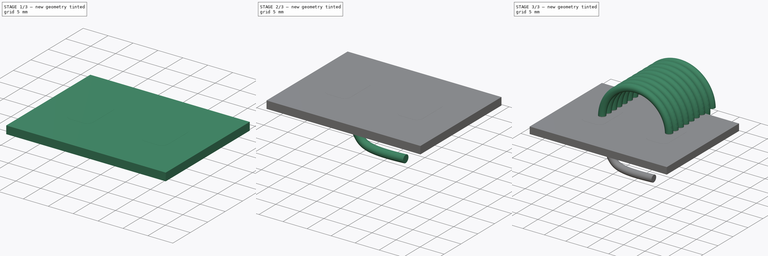
[diagram: build sequence overview — one tinted view per stage of 3, left to right]
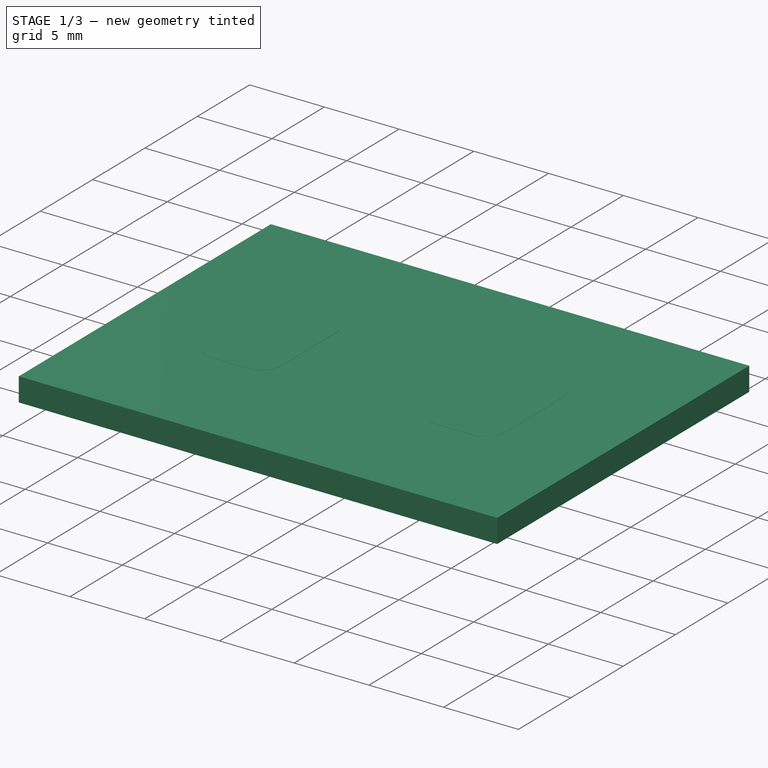
[diagram: stage 1 of 3 — iso view after this stage's code; geometry added in this stage tinted green]
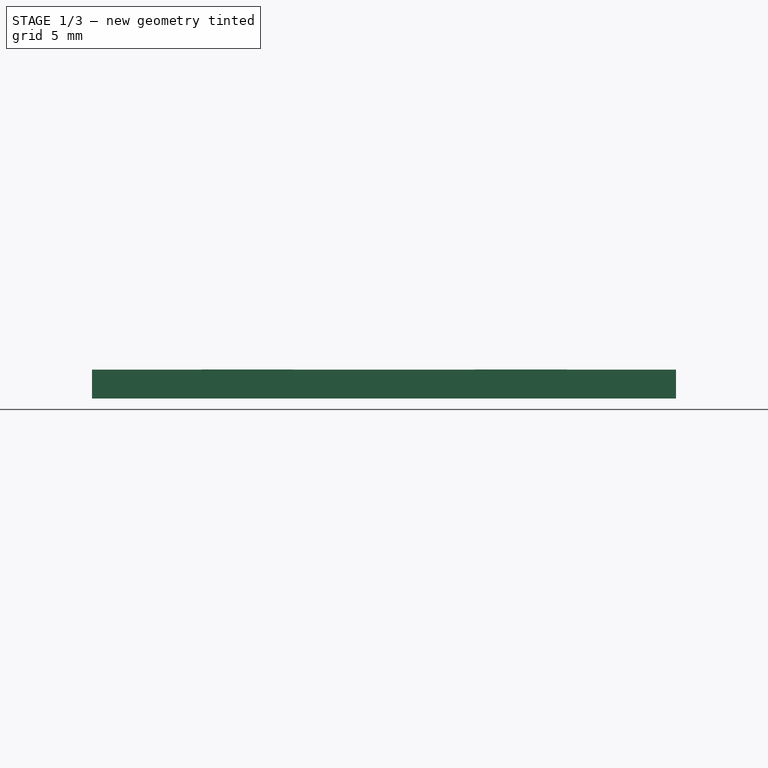
[diagram: stage 1 of 3 — front view after this stage's code; geometry added in this stage tinted green]
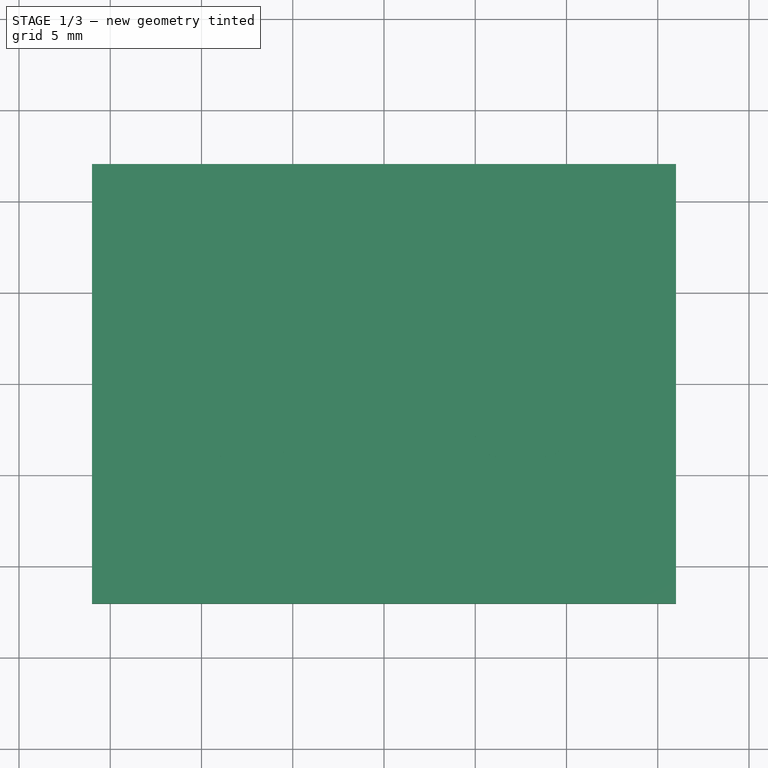
[diagram: stage 1 of 3 — top view after this stage's code; geometry added in this stage tinted green]
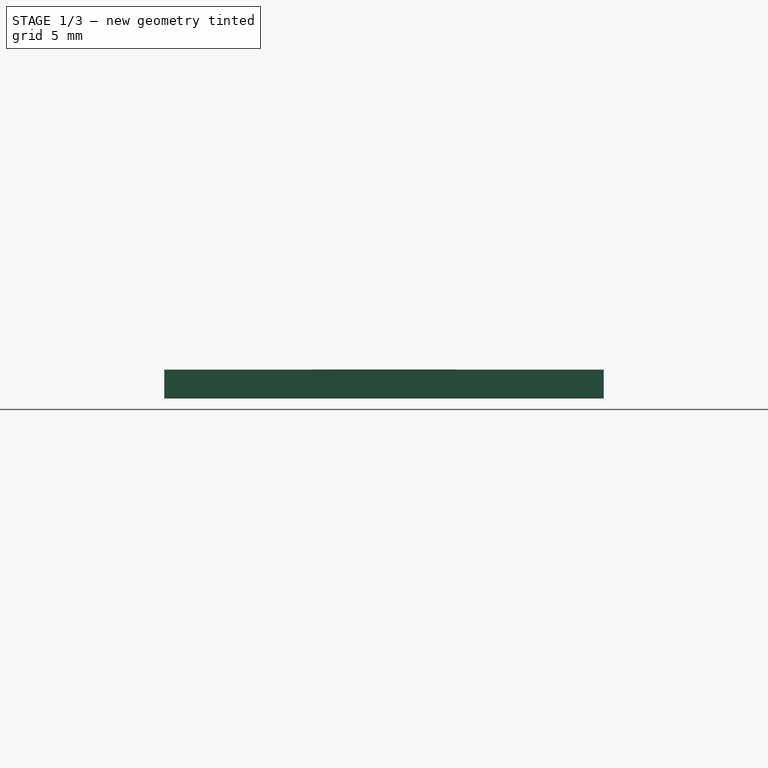
[diagram: stage 1 of 3 — right view after this stage's code; geometry added in this stage tinted green]
FCSTD DOCUMENT  (FreeCAD 0.19R24415 (Git))
Label: air core
License: All rights reserved
LicenseURL: http://en.wikipedia.org/wiki/All_rights_reserved
objects: Part::FeaturePython×3, Sketcher::SketchObject×2, PartDesign::Body×2, PartDesign::AdditiveHelix×1, Part::Sweep×1, PartDesign::FeatureBase×1, App::DocumentObjectGroup×1, Part::Feature×1
note: 12 computed .brp shape members not serialized (recipe doc carries the construction recipe); baked Part::Feature solids carry a one-line shape summary decoded from their .brp

FEATURE [PartDesign::Body] Body001
  Group = -> [Clone]
  Origin = -> Origin001
  Placement = pos=(-6e-16,15,0) rot=(0,0,1;3.14159rad)
  Tip = -> Clone
FEATURE [Part::FeaturePython] FCrtYd_lines  label="FCrtYd"  # a2plus imported part (geometry in sourceFile) (typed FeaturePython)
  fixedPosition = true
FEATURE [Part::FeaturePython] TopPads  # a2plus imported part (geometry in sourceFile) (typed FeaturePython)
  fixedPosition = true
FEATURE [Part::FeaturePython] newPCB  label="Pcb"  # a2plus imported part (geometry in sourceFile) (typed FeaturePython)
  fixedPosition = true
FEATURE [App::DocumentObjectGroup] inductor_air_15x15_fp
  Group = -> [FCrtYd_lines,TopPads,newPCB]
FEATURE [Part::Feature] Shape001  label="inductor_air_15x15"
  shape: bbox 18.04 x 19.73 x 22.47 mm, 13 faces (baked)
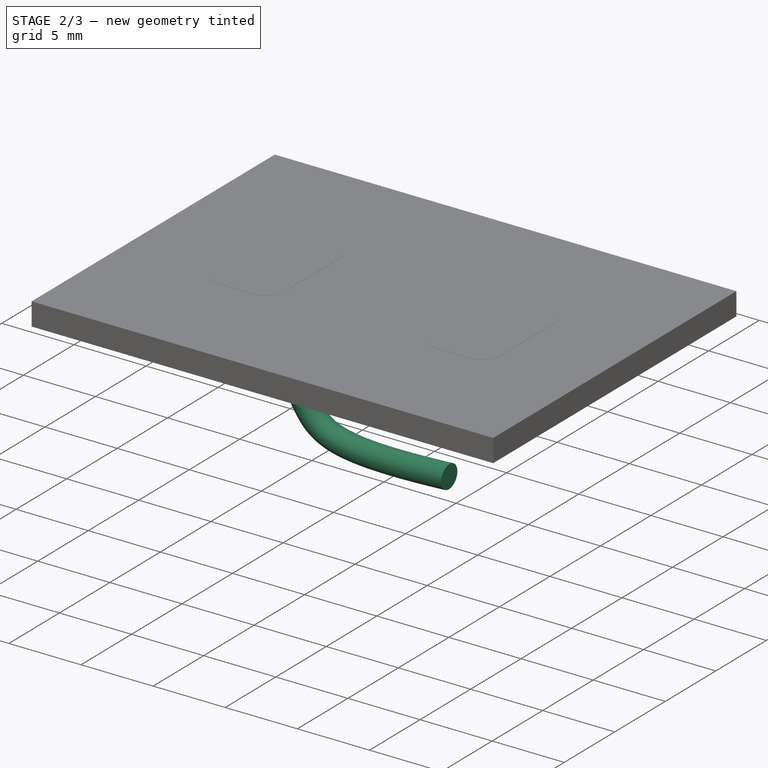
[diagram: stage 2 of 3 — iso view after this stage's code; geometry added in this stage tinted green]
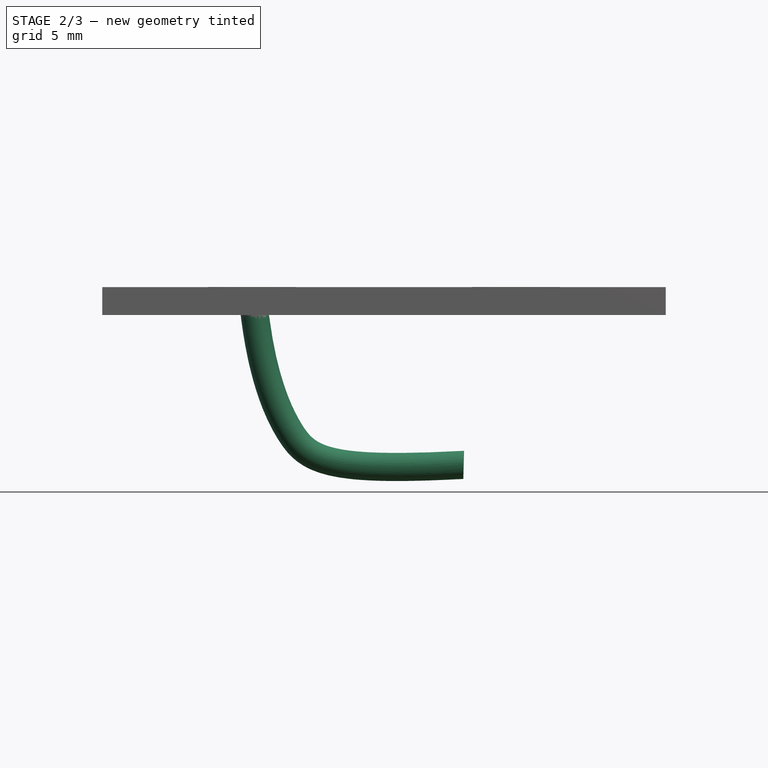
[diagram: stage 2 of 3 — front view after this stage's code; geometry added in this stage tinted green]
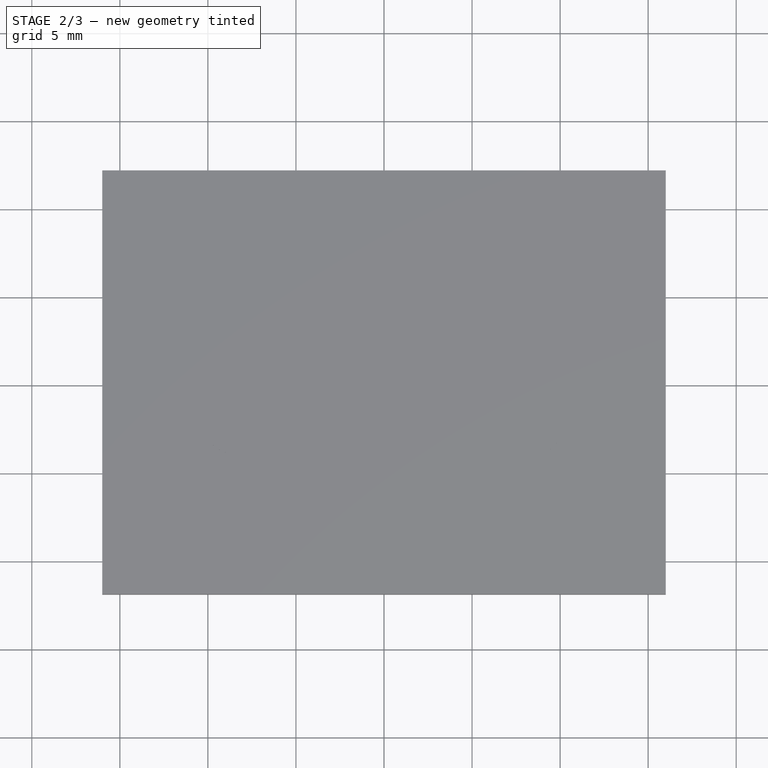
[diagram: stage 2 of 3 — top view after this stage's code; geometry added in this stage tinted green]
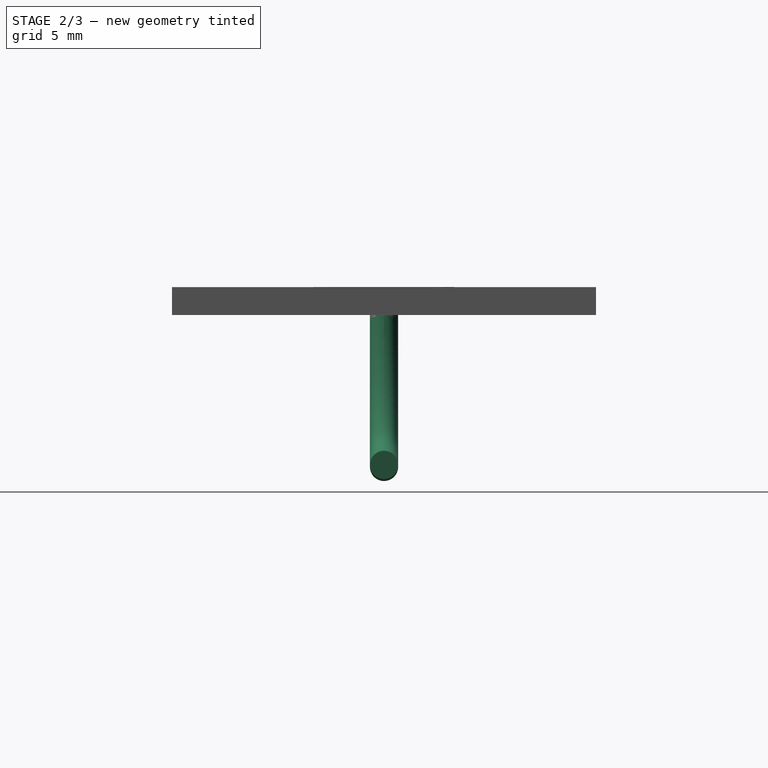
[diagram: stage 2 of 3 — right view after this stage's code; geometry added in this stage tinted green]
FEATURE [PartDesign::Body] Body
  Group = -> [Sketch001,Sketch,AdditiveHelix]
  Origin = -> Origin
  Tip = -> AdditiveHelix
FEATURE [Part::Sweep] Sweep
  Frenet = false
  Sections = -> [Sketch]
  Solid = true
  Spine = -> Sketch001 [Edge1]
  Transition = 1
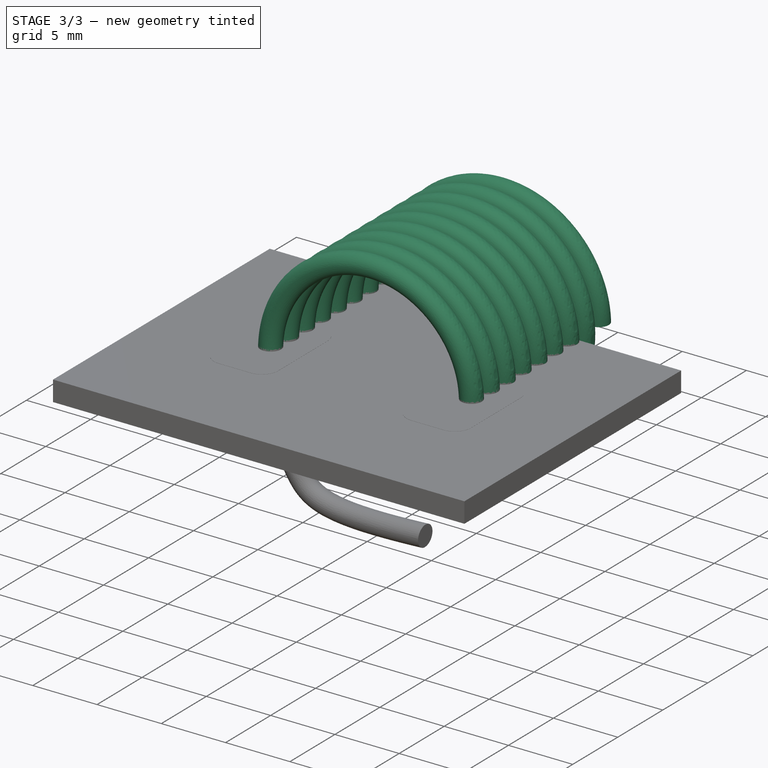
[diagram: stage 3 of 3 — iso view after this stage's code; geometry added in this stage tinted green]
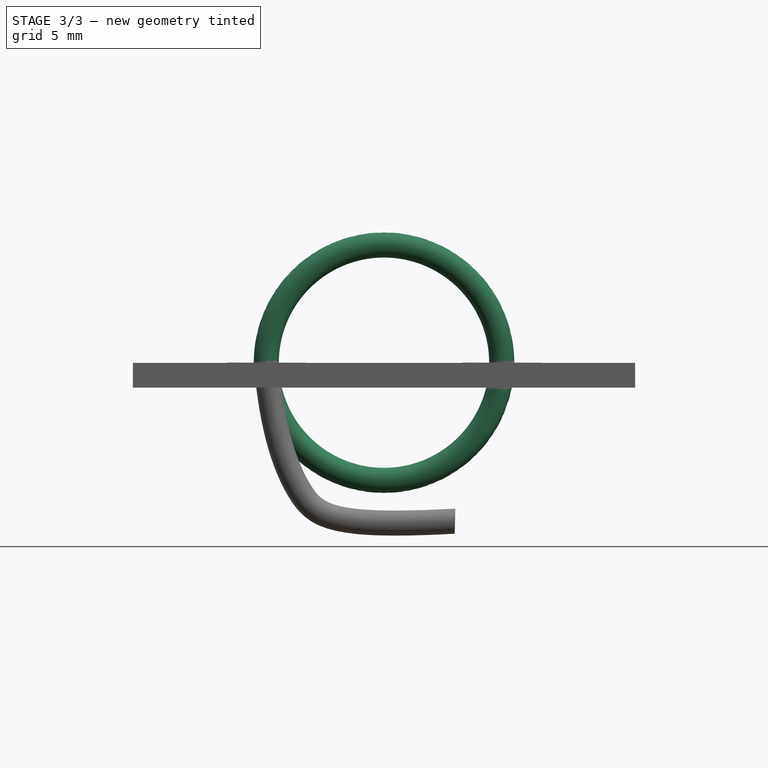
[diagram: stage 3 of 3 — front view after this stage's code; geometry added in this stage tinted green]
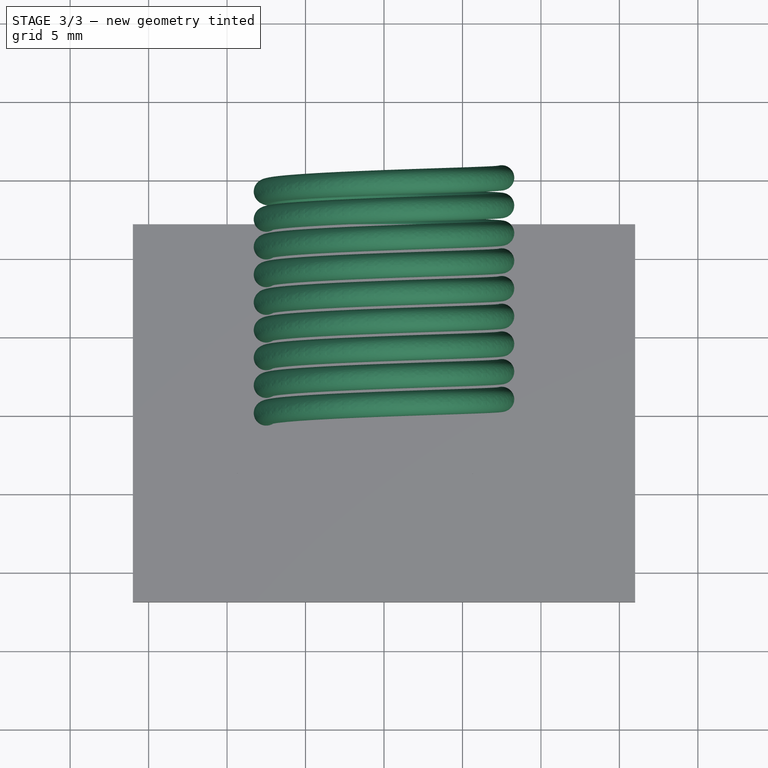
[diagram: stage 3 of 3 — top view after this stage's code; geometry added in this stage tinted green]
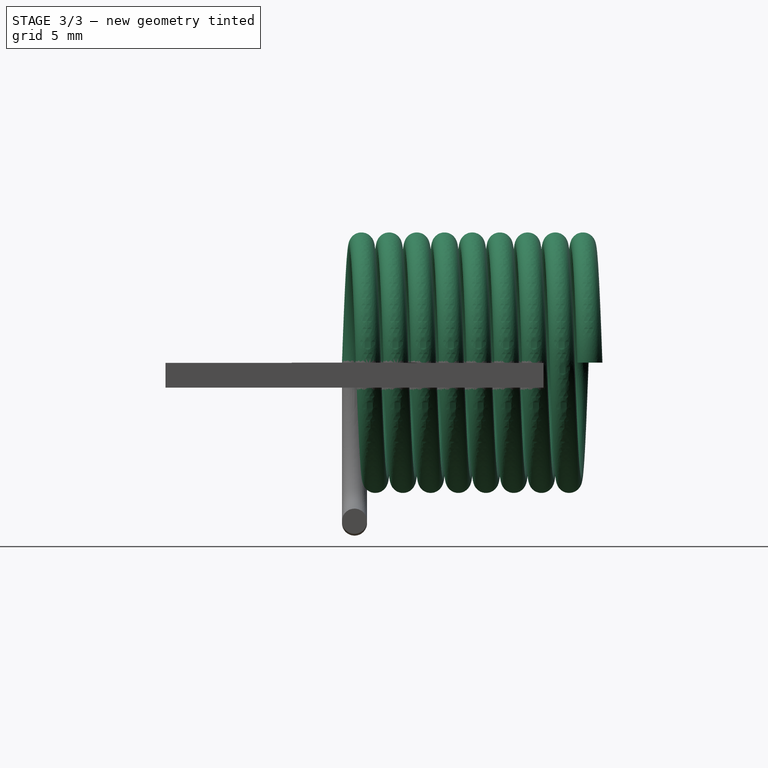
[diagram: stage 3 of 3 — right view after this stage's code; geometry added in this stage tinted green]
FEATURE [Sketcher::SketchObject] Sketch  label="wire_size"
  FullyConstrained = true
  MapMode = 5
  Support = -> [XY_Plane]
  sketch-geometry (1):
    g0: Circle CenterX=-7.5 CenterY=0 CenterZ=0 NormalX=0 NormalY=0 NormalZ=1 AngleXU=0 Radius=0.8
  constraints (3):
    c: PointOnObject(g0,g-1)
    c: Radius(g0) = 0.8
    c: DistanceX(g0,g-1) = 7.5
FEATURE [Sketcher::SketchObject] Sketch001  label="wire_bend"
  FullyConstrained = false
  MapMode = 5
  Placement = pos=(0,0,0) rot=(1,0,0;1.5708rad)
  Support = -> [XZ_Plane]
  sketch-geometry (9):
    g0-g4: Circle x5 (B-spline internal-alignment scaffolding for g5; pole/knot coordinates omitted)
    g5: BSplineCurve PolesCount=5 KnotsCount=3 Degree=3 IsPeriodic=0
    g6: GeomPoint X=-7.5 Y=0 Z=0
    g7: GeomPoint X=-5.31212 Y=-8.2709 Z=0
    g8: GeomPoint X=4.52559 Y=-10.1007 Z=0
  constraints (8):
    c: PointOnObject(g5,g-1)
    c: Weight(g0) = 1
    c: Equal(g0, g1-g4) x4
    c: InternalAlignment(g0-g4 -> g5) x5
    c: InternalAlignment(g6,g5)
    c: InternalAlignment(g7,g5)
    c: InternalAlignment(g8,g5)
    c: DistanceX(g5,g-1) = 7.5
FEATURE [PartDesign::AdditiveHelix] AdditiveHelix
  Angle = 0
  Axis = (0,1,0)
  Base = (0,0,0)
  HasBeenEdited = true
  Height = 15
  LeftHanded = false
  Mode = 2
  Outside = false
  Pitch = 1.76471
  Profile = -> Sketch
  ReferenceAxis = -> Sketch [V_Axis]
  Turns = 8.5
FEATURE [PartDesign::FeatureBase] Clone
  BaseFeature = -> Sweep
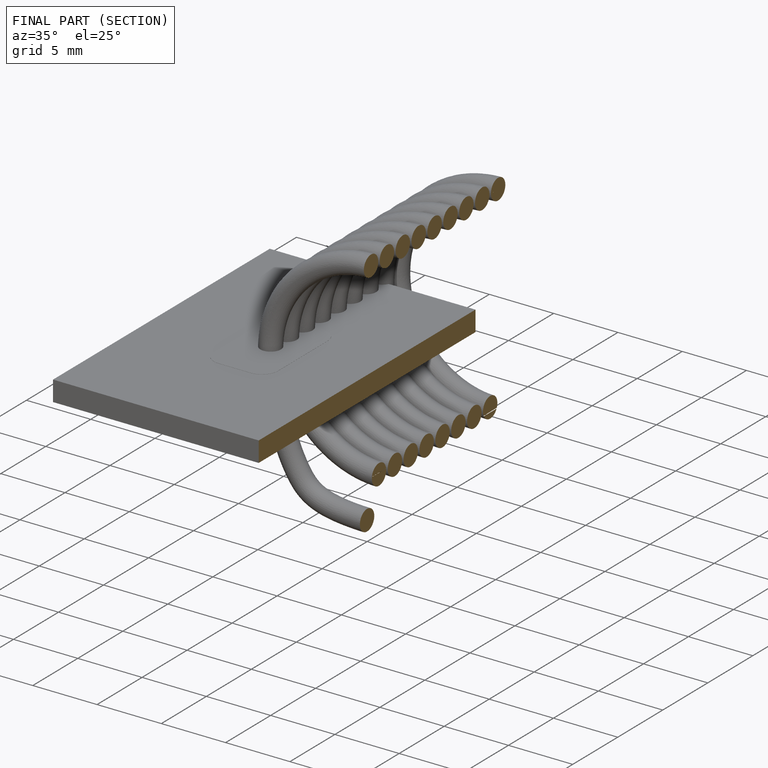
[diagram: finished part — half-section view (interior)]
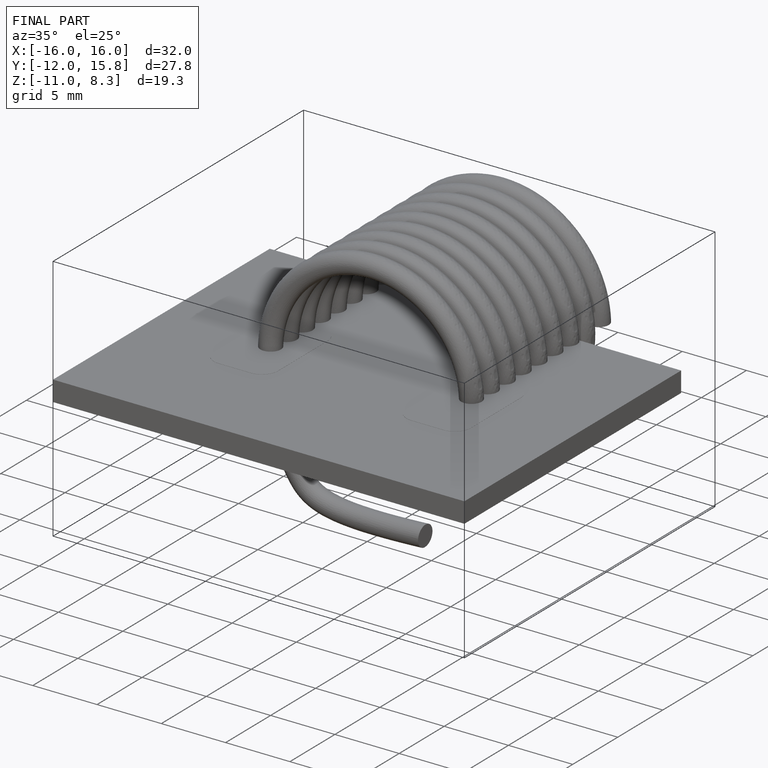
[diagram: finished part — iso view with bounding-box wireframe]
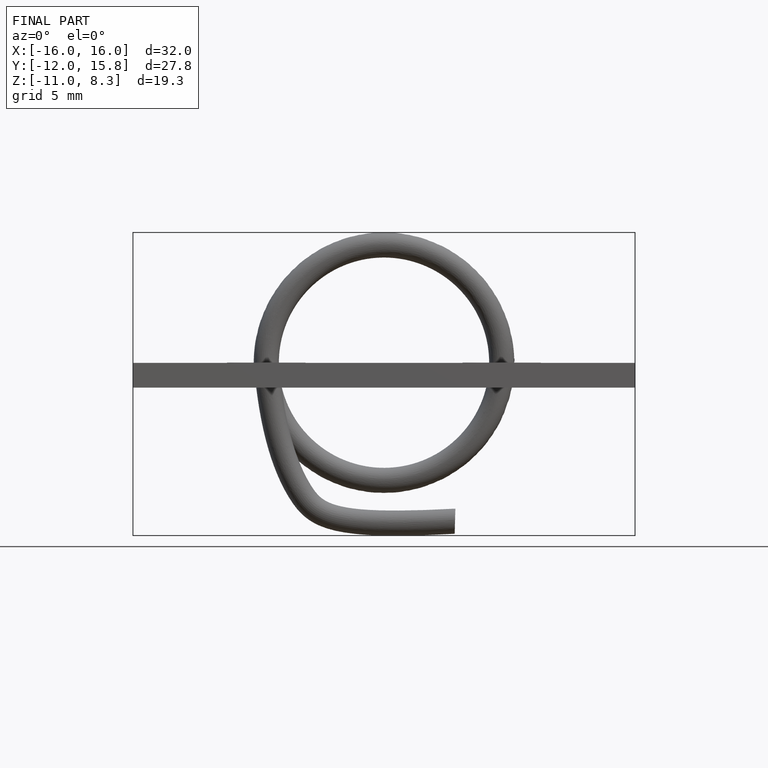
[diagram: finished part — front view with bounding-box wireframe]
